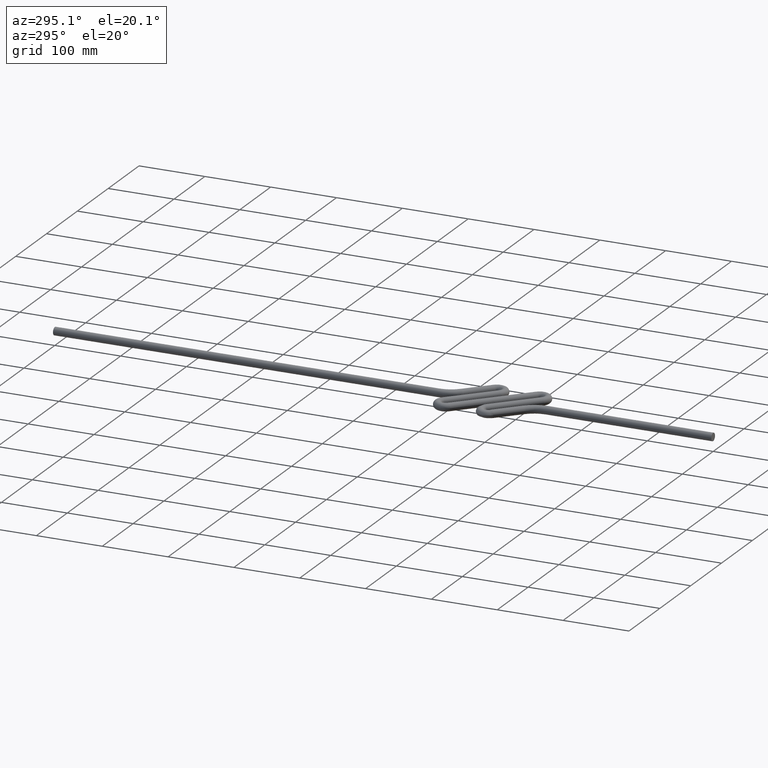
[diagram: clean part render]
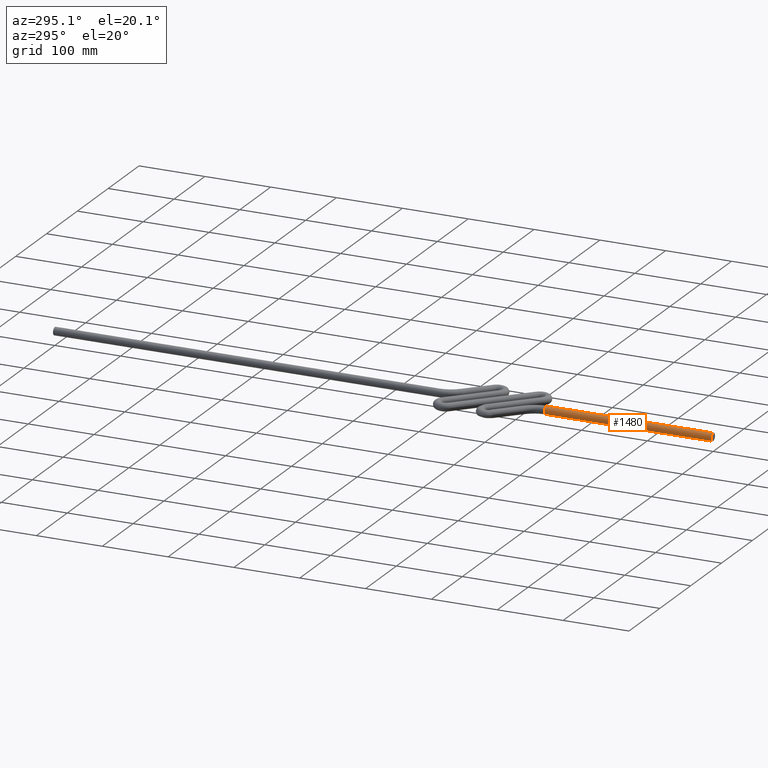
[diagram: same view with one face highlighted and labeled with its STEP entity id]
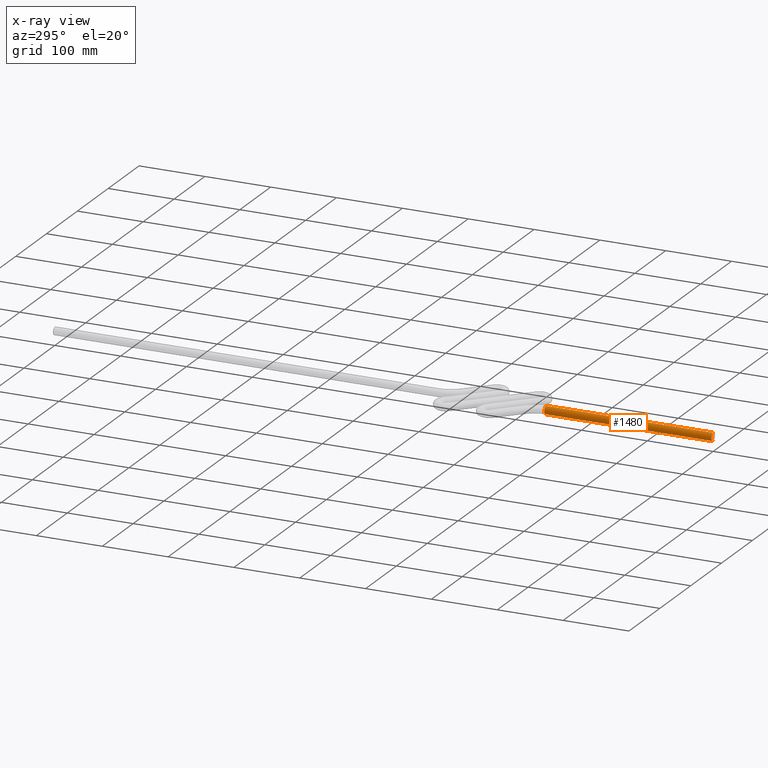
[diagram: x-ray of the same camera — body ghosted, the highlighted face saturated]
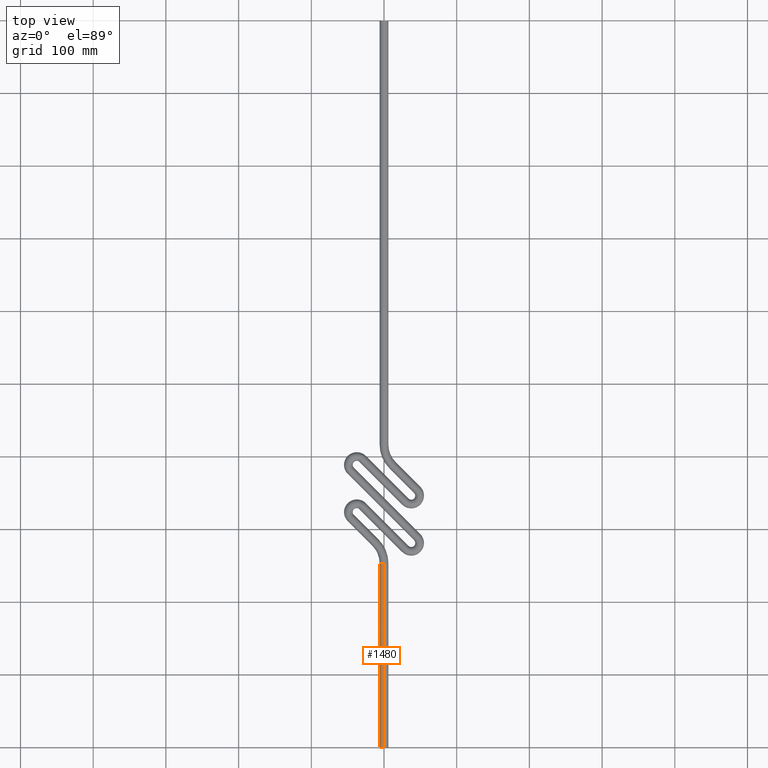
[diagram: same view with one face highlighted and labeled with its STEP entity id]
A machine part, auxiliary view. The second image highlights one B-rep face of the part: STEP entity #1480.
The next image is the same camera in x-ray: the body ghosted, the highlighted face saturated — about 0% of this face is hidden behind the body in this view.
A second angle (top view) of the same face is appended — the face is thin or edge-on in the first view.
In plain terms, the highlighted cylindrical surface (edge-blend (fillet) strip) has radius 6 mm, axis along (-0, -1, -0).
Its self-contained STEP definition (entity closure, byte-faithful):
#104 = VERTEX_POINT ( 'NONE', #2268 ) ;
#192 = DIRECTION ( 'NONE',  ( 0.0000000000000000000, 1.000000000000000000, 0.0000000000000000000 ) ) ;
#352 = EDGE_CURVE ( 'NONE', #5628, #2770, #2332, .T. ) ;
#435 = AXIS2_PLACEMENT_3D ( 'NONE', #3543, #192, #2344 ) ;
#802 = CARTESIAN_POINT ( 'NONE',  ( 0.0000000000000000000, 253.4314575050761700, -6.000000000000000900 ) ) ;
#826 = DIRECTION ( 'NONE',  ( 0.0000000000000000000, 0.0000000000000000000, -1.000000000000000000 ) ) ;
#939 = LINE ( 'NONE', #802, #4936 ) ;
#1021 = CARTESIAN_POINT ( 'NONE',  ( -6.000000000000001800, 253.4314575050761700, -7.347880794884122700E-016 ) ) ;
#1099 = CIRCLE ( 'NONE', #7012, 6.000000000000000900 ) ;
#1332 = ORIENTED_EDGE ( 'NONE', *, *, #352, .F. ) ;
#1465 = ORIENTED_EDGE ( 'NONE', *, *, #4331, .T. ) ;
#1480 = ADVANCED_FACE ( 'NONE', ( #2677 ), #6440, .T. ) ;
#1651 = DIRECTION ( 'NONE',  ( 0.0000000000000000000, 1.000000000000000000, 0.0000000000000000000 ) ) ;
#2008 = VERTEX_POINT ( 'NONE', #3086 ) ;
#2268 = CARTESIAN_POINT ( 'NONE',  ( 7.347880794884120700E-016, 253.4314575050761700, 6.000000000000000900 ) ) ;
#2332 = CIRCLE ( 'NONE', #435, 6.000000000000000900 ) ;
#2344 = DIRECTION ( 'NONE',  ( 0.0000000000000000000, 0.0000000000000000000, 1.000000000000000000 ) ) ;
#2446 = AXIS2_PLACEMENT_3D ( 'NONE', #4611, #4656, #826 ) ;
#2581 = LINE ( 'NONE', #3244, #5246 ) ;
#2677 = FACE_OUTER_BOUND ( 'NONE', #4390, .T. ) ;
#2770 = VERTEX_POINT ( 'NONE', #1021 ) ;
#2787 = CARTESIAN_POINT ( 'NONE',  ( 0.0000000000000000000, 0.0000000000000000000, 0.0000000000000000000 ) ) ;
#3086 = CARTESIAN_POINT ( 'NONE',  ( 0.0000000000000000000, 0.0000000000000000000, -6.000000000000000900 ) ) ;
#3244 = CARTESIAN_POINT ( 'NONE',  ( 7.347880794884120700E-016, 253.4314575050761700, 6.000000000000000900 ) ) ;
#3263 = ORIENTED_EDGE ( 'NONE', *, *, #3535, .F. ) ;
#3335 = DIRECTION ( 'NONE',  ( 0.0000000000000000000, 0.0000000000000000000, 1.000000000000000000 ) ) ;
#3535 = EDGE_CURVE ( 'NONE', #104, #5967, #2581, .T. ) ;
#3543 = CARTESIAN_POINT ( 'NONE',  ( 0.0000000000000000000, 253.4314575050761700, 0.0000000000000000000 ) ) ;
#4281 = EDGE_CURVE ( 'NONE', #2770, #104, #1099, .T. ) ;
#4331 = EDGE_CURVE ( 'NONE', #5628, #2008, #939, .T. ) ;
#4390 = EDGE_LOOP ( 'NONE', ( #3263, #4450, #1332, #1465, #6258 ) ) ;
#4450 = ORIENTED_EDGE ( 'NONE', *, *, #4281, .F. ) ;
#4611 = CARTESIAN_POINT ( 'NONE',  ( 0.0000000000000000000, 253.4314575050761700, 0.0000000000000000000 ) ) ;
#4653 = DIRECTION ( 'NONE',  ( -0.0000000000000000000, -1.000000000000000000, -0.0000000000000000000 ) ) ;
#4656 = DIRECTION ( 'NONE',  ( -0.0000000000000000000, -1.000000000000000000, -0.0000000000000000000 ) ) ;
#4898 = CARTESIAN_POINT ( 'NONE',  ( 0.0000000000000000000, 253.4314575050761700, 0.0000000000000000000 ) ) ;
#4936 = VECTOR ( 'NONE', #4653, 1000.000000000000000 ) ;
#5246 = VECTOR ( 'NONE', #6435, 1000.000000000000000 ) ;
#5430 = DIRECTION ( 'NONE',  ( 0.0000000000000000000, 0.0000000000000000000, 1.000000000000000000 ) ) ;
#5615 = CARTESIAN_POINT ( 'NONE',  ( 7.347880794884120700E-016, 0.0000000000000000000, 6.000000000000000900 ) ) ;
#5628 = VERTEX_POINT ( 'NONE', #6552 ) ;
#5873 = CIRCLE ( 'NONE', #6880, 6.000000000000000900 ) ;
#5967 = VERTEX_POINT ( 'NONE', #5615 ) ;
#6258 = ORIENTED_EDGE ( 'NONE', *, *, #6932, .T. ) ;
#6435 = DIRECTION ( 'NONE',  ( -0.0000000000000000000, -1.000000000000000000, -0.0000000000000000000 ) ) ;
#6440 = CYLINDRICAL_SURFACE ( 'NONE', #2446, 6.000000000000000900 ) ;
#6524 = DIRECTION ( 'NONE',  ( 0.0000000000000000000, 1.000000000000000000, 0.0000000000000000000 ) ) ;
#6552 = CARTESIAN_POINT ( 'NONE',  ( 0.0000000000000000000, 253.4314575050761700, -6.000000000000000900 ) ) ;
#6880 = AXIS2_PLACEMENT_3D ( 'NONE', #2787, #6524, #3335 ) ;
#6932 = EDGE_CURVE ( 'NONE', #2008, #5967, #5873, .T. ) ;
#7012 = AXIS2_PLACEMENT_3D ( 'NONE', #4898, #1651, #5430 ) ;